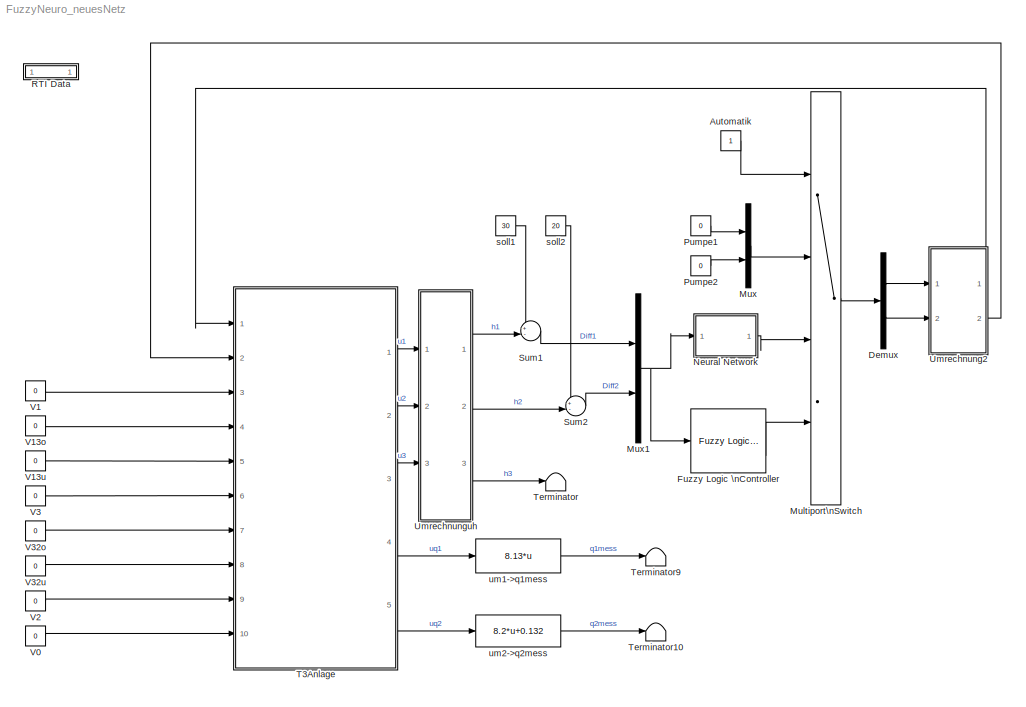
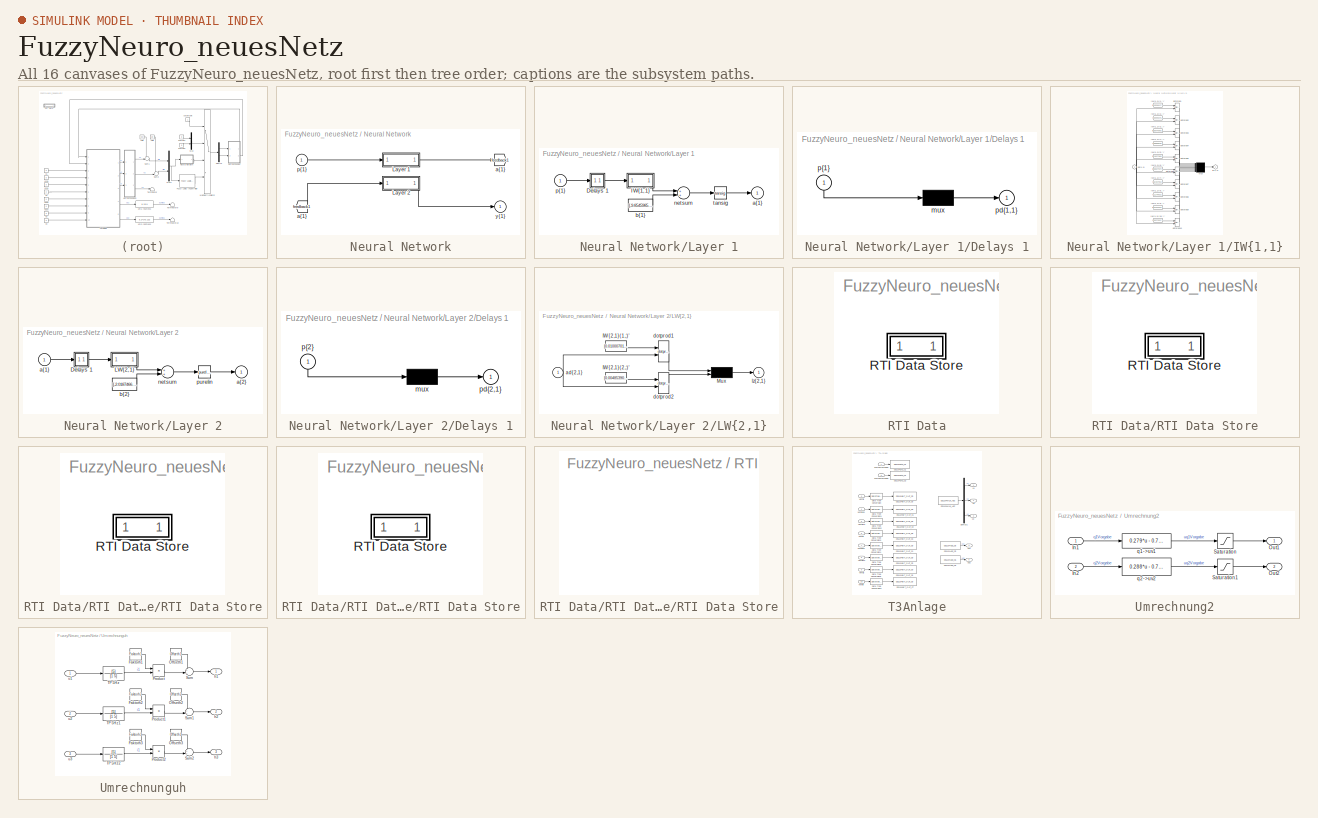
[diagram: thumbnail index - all 16 canvases of the model, root first then tree order]
MODEL FuzzyNeuro_neuesNetz
KIND model
CONFIG PostLoadFcn = , if any(exist('dsrtsu_mdlpostloadfcn', 'file') == [2, 3, 6]), try dsrtsu_mdlpostloadfcn('Execute', bdroot); catch fprintf('Error in PostLoadFcn (dsrtsu_mdlpostloadfcn) for model \"%s\":\\n %s\\n', bdroot, lasterr); end, end, \n
BLOCK [Constant] Automatik
  SID = 1
BLOCK [Demux] Demux
  Outputs = 2
  Ports = [1, 2]
  SID = 2
BLOCK [Reference] Fuzzy Logic \nController  REF=fuzblock/Fuzzy Logic \nController  (lib defined in mdl_858b3b3e7478)
  Ports = [1, 1]
  SID = 3
  SourceBlock = fuzblock/Fuzzy Logic \nController
  SourceType = FIS
  fis = Schmid
BLOCK [MultiPortSwitch] Multiport\nSwitch
  Ports = [4, 1]
  SID = 4
  zeroidx = off
BLOCK [Mux] Mux
  DisplayOption = bar
  Inputs = 2
  Ports = [2, 1]
  SID = 5
BLOCK [Mux] Mux1
  DisplayOption = bar
  Inputs = 2
  Ports = [2, 1]
  SID = 6
BLOCK [SubSystem] Neural Network
  FunctionWithSeparateData = off
  MaskHideContents = off
  MinAlgLoopOccurrences = off
  Opaque = off
  Ports = [1, 1]
  PropExecContextOutsideSubsystem = off
  RTWSystemCode = Auto
  RequestExecContextInheritance = off
  SID = 7
BLOCK [From] Neural Network/ a{1} 
  GotoTag = feedback1
  MaskDisplay = plot(cos(0:.1:2*pi),sin(0:.1:2*pi))
  MaskIconFrame = off
  MaskIconOpaque = on
  MaskIconRotate = none
  MaskIconUnits = autoscale
  MaskPortRotate = default
  SID = 9
BLOCK [SubSystem] Neural Network/Layer 1
  FunctionWithSeparateData = off
  MaskHideContents = off
  MinAlgLoopOccurrences = off
  Opaque = off
  Ports = [1, 1]
  PropExecContextOutsideSubsystem = off
  RTWSystemCode = Auto
  RequestExecContextInheritance = off
  SID = 10
BLOCK [SubSystem] Neural Network/Layer 1/Delays 1
  FunctionWithSeparateData = off
  MaskDisplay = disp('TDL')
  MaskHideContents = off
  MaskIconFrame = on
  MaskIconOpaque = on
  MaskIconRotate = none
  MaskIconUnits = autoscale
  MaskPortRotate = default
  MinAlgLoopOccurrences = off
  Opaque = off
  Ports = [1, 1]
  PropExecContextOutsideSubsystem = off
  RTWSystemCode = Auto
  RequestExecContextInheritance = off
  SID = 12
BLOCK [Mux] Neural Network/Layer 1/Delays 1/mux
  Inputs = 1
  Ports = [1, 1]
  SID = 14
BLOCK [Outport] Neural Network/Layer 1/Delays 1/pd{1,1}
  IconDisplay = Port number
  SID = 15
BLOCK [Inport] Neural Network/Layer 1/Delays 1/p{1}
  IconDisplay = Port number
  PortDimensions = 2
  SID = 13
  SampleTime = 0.01
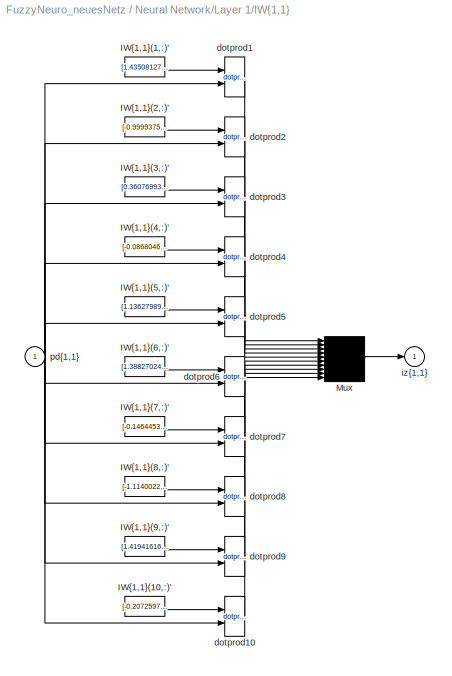
BLOCK [SubSystem] Neural Network/Layer 1/IW{1,1}
  FunctionWithSeparateData = off
  MaskDisplay = disp('weight')
  MaskHideContents = off
  MaskIconFrame = on
  MaskIconOpaque = on
  MaskIconRotate = none
  MaskIconUnits = autoscale
  MaskPortRotate = default
  MinAlgLoopOccurrences = off
  Opaque = off
  Ports = [1, 1]
  PropExecContextOutsideSubsystem = off
  RTWSystemCode = Auto
  RequestExecContextInheritance = off
  SID = 16
BLOCK [Constant] Neural Network/Layer 1/IW{1,1}/IW{1,1}(1,:)'
  MaskDisplay = disp('weights')
  MaskIconFrame = on
  MaskIconOpaque = on
  MaskIconRotate = none
  MaskIconUnits = autoscale
  MaskPortRotate = default
  SID = 18
  Value = [1.4350812730013165;0.36982637838081583]
BLOCK [Constant] Neural Network/Layer 1/IW{1,1}/IW{1,1}(10,:)'
  MaskDisplay = disp('weights')
  MaskIconFrame = on
  MaskIconOpaque = on
  MaskIconRotate = none
  MaskIconUnits = autoscale
  MaskPortRotate = default
  SID = 19
  Value = [-0.2072597122421084;1.475820717234636]
BLOCK [Constant] Neural Network/Layer 1/IW{1,1}/IW{1,1}(2,:)'
  MaskDisplay = disp('weights')
  MaskIconFrame = on
  MaskIconOpaque = on
  MaskIconRotate = none
  MaskIconUnits = autoscale
  MaskPortRotate = default
  SID = 20
  Value = [-0.99993750318269126;1.0857089683304775]
BLOCK [Constant] Neural Network/Layer 1/IW{1,1}/IW{1,1}(3,:)'
  MaskDisplay = disp('weights')
  MaskIconFrame = on
  MaskIconOpaque = on
  MaskIconRotate = none
  MaskIconUnits = autoscale
  MaskPortRotate = default
  SID = 21
  Value = [0.36076993678749514;1.4316697304954116]
BLOCK [Constant] Neural Network/Layer 1/IW{1,1}/IW{1,1}(4,:)'
  MaskDisplay = disp('weights')
  MaskIconFrame = on
  MaskIconOpaque = on
  MaskIconRotate = none
  MaskIconUnits = autoscale
  MaskPortRotate = default
  SID = 22
  Value = [-0.086804668652516723;1.4736166498679069]
BLOCK [Constant] Neural Network/Layer 1/IW{1,1}/IW{1,1}(5,:)'
  MaskDisplay = disp('weights')
  MaskIconFrame = on
  MaskIconOpaque = on
  MaskIconRotate = none
  MaskIconUnits = autoscale
  MaskPortRotate = default
  SID = 23
  Value = [1.1362798989988234;-0.93977761535973003]
BLOCK [Constant] Neural Network/Layer 1/IW{1,1}/IW{1,1}(6,:)'
  MaskDisplay = disp('weights')
  MaskIconFrame = on
  MaskIconOpaque = on
  MaskIconRotate = none
  MaskIconUnits = autoscale
  MaskPortRotate = default
  SID = 24
  Value = [1.388270248975592;-0.49936608330011195]
BLOCK [Constant] Neural Network/Layer 1/IW{1,1}/IW{1,1}(7,:)'
  MaskDisplay = disp('weights')
  MaskIconFrame = on
  MaskIconOpaque = on
  MaskIconRotate = none
  MaskIconUnits = autoscale
  MaskPortRotate = default
  SID = 25
  Value = [-0.14644537512169173;1.4644145006152187]
BLOCK [Constant] Neural Network/Layer 1/IW{1,1}/IW{1,1}(8,:)'
  MaskDisplay = disp('weights')
  MaskIconFrame = on
  MaskIconOpaque = on
  MaskIconRotate = none
  MaskIconUnits = autoscale
  MaskPortRotate = default
  SID = 26
  Value = [-1.1140022295779455;0.9640612910542028]
BLOCK [Constant] Neural Network/Layer 1/IW{1,1}/IW{1,1}(9,:)'
  MaskDisplay = disp('weights')
  MaskIconFrame = on
  MaskIconOpaque = on
  MaskIconRotate = none
  MaskIconUnits = autoscale
  MaskPortRotate = default
  SID = 27
  Value = [1.4194161616233616;-0.39601891708848608]
BLOCK [Mux] Neural Network/Layer 1/IW{1,1}/Mux
  Inputs = 10
  Ports = [10, 1]
  SID = 28
BLOCK [Reference] Neural Network/Layer 1/IW{1,1}/dotprod1  REF=neural/Weight Functions/dotprod
  Ports = [2, 1]
  SID = 29
  SourceBlock = neural/Weight Functions/dotprod
  SourceType = DOTPROD
BLOCK [Reference] Neural Network/Layer 1/IW{1,1}/dotprod10  REF=neural/Weight Functions/dotprod
  Ports = [2, 1]
  SID = 30
  SourceBlock = neural/Weight Functions/dotprod
  SourceType = DOTPROD
BLOCK [Reference] Neural Network/Layer 1/IW{1,1}/dotprod2  REF=neural/Weight Functions/dotprod
  Ports = [2, 1]
  SID = 31
  SourceBlock = neural/Weight Functions/dotprod
  SourceType = DOTPROD
BLOCK [Reference] Neural Network/Layer 1/IW{1,1}/dotprod3  REF=neural/Weight Functions/dotprod
  Ports = [2, 1]
  SID = 32
  SourceBlock = neural/Weight Functions/dotprod
  SourceType = DOTPROD
BLOCK [Reference] Neural Network/Layer 1/IW{1,1}/dotprod4  REF=neural/Weight Functions/dotprod
  Ports = [2, 1]
  SID = 33
  SourceBlock = neural/Weight Functions/dotprod
  SourceType = DOTPROD
BLOCK [Reference] Neural Network/Layer 1/IW{1,1}/dotprod5  REF=neural/Weight Functions/dotprod
  Ports = [2, 1]
  SID = 34
  SourceBlock = neural/Weight Functions/dotprod
  SourceType = DOTPROD
BLOCK [Reference] Neural Network/Layer 1/IW{1,1}/dotprod6  REF=neural/Weight Functions/dotprod
  Ports = [2, 1]
  SID = 35
  SourceBlock = neural/Weight Functions/dotprod
  SourceType = DOTPROD
BLOCK [Reference] Neural Network/Layer 1/IW{1,1}/dotprod7  REF=neural/Weight Functions/dotprod
  Ports = [2, 1]
  SID = 36
  SourceBlock = neural/Weight Functions/dotprod
  SourceType = DOTPROD
BLOCK [Reference] Neural Network/Layer 1/IW{1,1}/dotprod8  REF=neural/Weight Functions/dotprod
  Ports = [2, 1]
  SID = 37
  SourceBlock = neural/Weight Functions/dotprod
  SourceType = DOTPROD
BLOCK [Reference] Neural Network/Layer 1/IW{1,1}/dotprod9  REF=neural/Weight Functions/dotprod
  Ports = [2, 1]
  SID = 38
  SourceBlock = neural/Weight Functions/dotprod
  SourceType = DOTPROD
BLOCK [Outport] Neural Network/Layer 1/IW{1,1}/iz{1,1}
  IconDisplay = Port number
  SID = 39
BLOCK [Inport] Neural Network/Layer 1/IW{1,1}/pd{1,1}
  IconDisplay = Port number
  PortDimensions = 2
  SID = 17
  SampleTime = 0.01
BLOCK [Outport] Neural Network/Layer 1/a{1}
  IconDisplay = Port number
  InitialOutput = [0;0;0;0;0;0;0;0;0;0]
  SID = 43
BLOCK [Constant] Neural Network/Layer 1/b{1}
  MaskDisplay = disp('bias')
  MaskIconFrame = on
  MaskIconOpaque = on
  MaskIconRotate = none
  MaskIconUnits = autoscale
  MaskPortRotate = default
  SID = 40
  Value = [-9.8545985505022529;3.1869783820136055;-7.8385048556717223;-2.6842174078204861;-1.0793676125527614;-2.1740694877769813;-5.427515514459051;-2.0106026099595997;0.36933408755053759;-8.2681561032045394]
BLOCK [Sum] Neural Network/Layer 1/netsum
  Inputs = 2
  Ports = [2, 1]
  SID = 41
BLOCK [Inport] Neural Network/Layer 1/p{1}
  IconDisplay = Port number
  PortDimensions = 2
  SID = 11
  SampleTime = 0.01
BLOCK [Reference] Neural Network/Layer 1/tansig  REF=neural/Transfer Functions/tansig
  Ports = [1, 1]
  SID = 42
  SourceBlock = neural/Transfer Functions/tansig
  SourceType = TANSIG
BLOCK [SubSystem] Neural Network/Layer 2
  FunctionWithSeparateData = off
  MaskHideContents = off
  MinAlgLoopOccurrences = off
  Opaque = off
  Ports = [1, 1]
  PropExecContextOutsideSubsystem = off
  RTWSystemCode = Auto
  RequestExecContextInheritance = off
  SID = 44
BLOCK [SubSystem] Neural Network/Layer 2/Delays 1
  FunctionWithSeparateData = off
  MaskDisplay = disp('TDL')
  MaskHideContents = off
  MaskIconFrame = on
  MaskIconOpaque = on
  MaskIconRotate = none
  MaskIconUnits = autoscale
  MaskPortRotate = default
  MinAlgLoopOccurrences = off
  Opaque = off
  Ports = [1, 1]
  PropExecContextOutsideSubsystem = off
  RTWSystemCode = Auto
  RequestExecContextInheritance = off
  SID = 46
BLOCK [Mux] Neural Network/Layer 2/Delays 1/mux
  Inputs = 1
  Ports = [1, 1]
  SID = 48
BLOCK [Outport] Neural Network/Layer 2/Delays 1/pd{2,1}
  IconDisplay = Port number
  SID = 49
BLOCK [Inport] Neural Network/Layer 2/Delays 1/p{2}
  IconDisplay = Port number
  PortDimensions = 10
  SID = 47
  SampleTime = 0.01
BLOCK [SubSystem] Neural Network/Layer 2/LW{2,1}
  FunctionWithSeparateData = off
  MaskDisplay = disp('weight')
  MaskHideContents = off
  MaskIconFrame = on
  MaskIconOpaque = on
  MaskIconRotate = none
  MaskIconUnits = autoscale
  MaskPortRotate = default
  MinAlgLoopOccurrences = off
  Opaque = off
  Ports = [1, 1]
  PropExecContextOutsideSubsystem = off
  RTWSystemCode = Auto
  RequestExecContextInheritance = off
  SID = 50
BLOCK [Constant] Neural Network/Layer 2/LW{2,1}/IW{2,1}(1,:)'
  MaskDisplay = disp('weights')
  MaskIconFrame = on
  MaskIconOpaque = on
  MaskIconRotate = none
  MaskIconUnits = autoscale
  MaskPortRotate = default
  SID = 52
  Value = [0.010007011480956507;9.7559540301772607e-005;-0.00045943194759578976;0.00026549758885008323;-0.00037704261757348645;-0.00023329615755329769;-0.0010107765113510359;3.7562430615145637e-005;0.00083885674521977371;0.0073884446713381458]
BLOCK [Constant] Neural Network/Layer 2/LW{2,1}/IW{2,1}(2,:)'
  MaskDisplay = disp('weights')
  MaskIconFrame = on
  MaskIconOpaque = on
  MaskIconRotate = none
  MaskIconUnits = autoscale
  MaskPortRotate = default
  SID = 53
  Value = [0.0048539083367129532;7.6872455937682105e-005;-0.0013566498908624824;9.8465439347106276e-006;-0.00033394909973916143;6.8337800822604322e-005;0.0018117902613594694;-0.00024838071057661781;0.00040060754880270888;-0.0050191161396336836]
BLOCK [Mux] Neural Network/Layer 2/LW{2,1}/Mux
  Inputs = 2
  Ports = [2, 1]
  SID = 54
BLOCK [Inport] Neural Network/Layer 2/LW{2,1}/ad{2,1}
  IconDisplay = Port number
  PortDimensions = 10
  SID = 51
  SampleTime = 0.01
BLOCK [Reference] Neural Network/Layer 2/LW{2,1}/dotprod1  REF=neural/Weight Functions/dotprod
  Ports = [2, 1]
  SID = 55
  SourceBlock = neural/Weight Functions/dotprod
  SourceType = DOTPROD
BLOCK [Reference] Neural Network/Layer 2/LW{2,1}/dotprod2  REF=neural/Weight Functions/dotprod
  Ports = [2, 1]
  SID = 56
  SourceBlock = neural/Weight Functions/dotprod
  SourceType = DOTPROD
BLOCK [Outport] Neural Network/Layer 2/LW{2,1}/lz{2,1}
  IconDisplay = Port number
  SID = 57
BLOCK [Inport] Neural Network/Layer 2/a{1} 
  IconDisplay = Port number
  PortDimensions = 10
  SID = 45
  SampleTime = 0.01
BLOCK [Outport] Neural Network/Layer 2/a{2}
  IconDisplay = Port number
  InitialOutput = [0;0]
  SID = 61
BLOCK [Constant] Neural Network/Layer 2/b{2}
  MaskDisplay = disp('bias')
  MaskIconFrame = on
  MaskIconOpaque = on
  MaskIconRotate = none
  MaskIconUnits = autoscale
  MaskPortRotate = default
  SID = 58
  Value = [-2.0187466227910615;-1.922300189425423]
BLOCK [Sum] Neural Network/Layer 2/netsum
  Inputs = 2
  Ports = [2, 1]
  SID = 59
BLOCK [Reference] Neural Network/Layer 2/purelin  REF=neural/Transfer Functions/purelin
  Ports = [1, 1]
  SID = 60
  SourceBlock = neural/Transfer Functions/purelin
  SourceType = PURELIN
BLOCK [Goto] Neural Network/a{1}
  GotoTag = feedback1
  MaskDisplay = plot(cos(0:.1:2*pi),sin(0:.1:2*pi))
  MaskIconFrame = off
  MaskIconOpaque = on
  MaskIconRotate = none
  MaskIconUnits = autoscale
  MaskPortRotate = default
  SID = 62
  TagVisibility = local
BLOCK [Inport] Neural Network/p{1}
  IconDisplay = Port number
  PortDimensions = 2
  SID = 8
  SampleTime = 0.01
BLOCK [Outport] Neural Network/y{1}
  IconDisplay = Port number
  InitialOutput = [0;0]
  SID = 63
BLOCK [Constant] Pumpe1
  SID = 64
  Value = 0
BLOCK [Constant] Pumpe2
  SID = 65
  Value = 0
BLOCK [SubSystem] RTI Data
  CopyFcn = if exist('rtidc'), try,  rtidc('DataHostBlockClbCopy', gcbh); catch, disp(['Warning: ''CopyFcn'' for RTI Data block failed: ' lasterr]); end, end,
  DeleteFcn = if exist('rtidc'), try,  rtidc('DataHostBlockClbDelete', gcbh); catch, disp(['Warning: ''DeleteFcn'' for RTI Data block failed: ' lasterr]); end, end,
  FunctionWithSeparateData = off
  LoadFcn = if exist('rtidc'), try,  rtidc('DataHostBlockClbLoad', gcbh); catch, disp(['Warning: ''LoadFcn'' for RTI Data block failed: ' lasterr]); end, end,
  MaskDescription = RTI Data Block.\nThis block is used by RTI to store internal model-dependent data.\nPlease keep this block on the root level of the model. Deleting this block will result in data loss.\n\nNEVER DELETE OR COPY THIS BLOCK!
  MaskDisplay = text(0.5, 0.5, 'RTI Data', 'HorizontalAlignment', 'center');\nplot([1 0]);
  MaskHelp = RTI Data Block.\nThis block is used by RTI to store internal model-dependent data.\nPlease keep this block on the root level of the model. Deleting this block will result in data loss.\n\nNEVER DELETE OR COPY THIS BLOCK!
  MaskHideContents = off
  MaskIconFrame = on
  MaskIconOpaque = on
  MaskIconRotate = none
  MaskIconUnits = normalized
  MaskPortRotate = default
  MaskType = RTI_DATA_HOST
  MinAlgLoopOccurrences = off
  ModelCloseFcn = if exist('rtidc'), try,  rtidc('DataHostBlockClbModelClose', gcbh); catch, disp(['Warning: ''ModelCloseFcn'' for RTI Data block failed: ' lasterr]); end, end,
  NameChangeFcn = if exist('rtidc'), try,  rtidc('DataHostBlockClbNameChange', gcbh); catch, disp(['Warning: ''NameChangeFcn'' for RTI Data block failed: ' lasterr]); end, end,
  Opaque = off
  Ports = []
  PostSaveFcn = if exist('rtidc'), try,  rtidc('DataHostBlockClbPostSave', gcbh); catch, disp(['Warning: ''PostSaveFcn'' for RTI Data block failed: ' lasterr]); end, end,
  PreSaveFcn = if exist('rtidc'), try,  rtidc('DataHostBlockClbPreSave', gcbh); catch, disp(['Warning: ''PreSaveFcn'' for RTI Data block failed: ' lasterr]); end, end,
  PropExecContextOutsideSubsystem = off
  RTWSystemCode = Auto
  RequestExecContextInheritance = off
  SID = 66
  Tag = struct('RTIDataServer',struct('RTIDataServerVs','2','RTIModelDescription','struct(''main'',''FuzzyNeuro_neuesNetz'',''sub'','''',''isMp'',0)'))
BLOCK [SubSystem] RTI Data/RTI Data Store
  FunctionWithSeparateData = off
  MaskDescription = RTI Data Store Block. This block is used by RTI to store internal model dependent data. Deleting this block will result in data loss.\n\nNEVER DELETE, COPY, OR MODIFY THIS BLOCK!
  MaskDisplay = text(0.5, 0.5, ' ', 'HorizontalAlignment', 'center');
  MaskHelp = RTI Data Store Block. This block is used by RTI to store internal model dependent data. Deleting this block will result in data loss.\n\nNEVER DELETE, COPY, OR MODIFY THIS BLOCK!
  MaskHideContents = off
  MaskIconFrame = off
  MaskIconOpaque = on
  MaskIconRotate = none
  MaskIconUnits = normalized
  MaskPortRotate = default
  MaskType = RTI_DATA_STORE
  MinAlgLoopOccurrences = off
  Opaque = off
  Ports = []
  PropExecContextOutsideSubsystem = off
  RTWSystemCode = Auto
  RequestExecContextInheritance = off
  SID = 161
  Tag = struct('private',struct('version',struct('dsVer',uint32(2),'dsVerCreation',uint32(2),'RTI',struct('ver','4.2','type','RTI1103')),'access',struct('type','Model','isPerm',1,'created',['14-Aug-2002 15:51:47'],'modified',['05-Nov-2015 18:46:08'],'location','')),'public',struct('main',struct('data',[]),'sub',struct('name',{{'FuzzyNeuro_neuesNetz'}},'data',{{struct('TH',struct('thTaskInfo',struct('taskT...<+877ch>
BLOCK [SubSystem] RTI Data/RTI Data Store/RTI Data Store
  FunctionWithSeparateData = off
  MaskDescription = RTI Data Store Block. This block is used by RTI to store internal model dependent data. Deleting this block will result in data loss.\n\nNEVER DELETE, COPY, OR MODIFY THIS BLOCK!
  MaskDisplay = text(0.5, 0.5, ' ', 'HorizontalAlignment', 'center');
  MaskHelp = RTI Data Store Block. This block is used by RTI to store internal model dependent data. Deleting this block will result in data loss.\n\nNEVER DELETE, COPY, OR MODIFY THIS BLOCK!
  MaskHideContents = off
  MaskIconFrame = off
  MaskIconOpaque = on
  MaskIconRotate = none
  MaskIconUnits = normalized
  MaskPortRotate = default
  MaskType = RTI_DATA_STORE
  MinAlgLoopOccurrences = off
  Opaque = off
  Ports = []
  PropExecContextOutsideSubsystem = off
  RTWSystemCode = Auto
  RequestExecContextInheritance = off
  SID = 162
BLOCK [SubSystem] RTI Data/RTI Data Store/RTI Data Store/RTI Data Store
  FunctionWithSeparateData = off
  MaskDescription = RTI Data Store Block. This block is used by RTI to store internal model dependent data. Deleting this block will result in data loss.\n\nNEVER DELETE, COPY, OR MODIFY THIS BLOCK!
  MaskDisplay = text(0.5, 0.5, ' ', 'HorizontalAlignment', 'center');
  MaskHelp = RTI Data Store Block. This block is used by RTI to store internal model dependent data. Deleting this block will result in data loss.\n\nNEVER DELETE, COPY, OR MODIFY THIS BLOCK!
  MaskHideContents = off
  MaskIconFrame = off
  MaskIconOpaque = on
  MaskIconRotate = none
  MaskIconUnits = normalized
  MaskPortRotate = default
  MaskType = RTI_DATA_STORE
  MinAlgLoopOccurrences = off
  Opaque = off
  Ports = []
  PropExecContextOutsideSubsystem = off
  RTWSystemCode = Auto
  RequestExecContextInheritance = off
  SID = 163
BLOCK [SubSystem] RTI Data/RTI Data Store/RTI Data Store/RTI Data Store/RTI Data Store
  FunctionWithSeparateData = off
  MaskDescription = RTI Data Store Block. This block is used by RTI to store internal model dependent data. Deleting this block will result in data loss.\n\nNEVER DELETE, COPY, OR MODIFY THIS BLOCK!
  MaskDisplay = text(0.5, 0.5, ' ', 'HorizontalAlignment', 'center');
  MaskHelp = RTI Data Store Block. This block is used by RTI to store internal model dependent data. Deleting this block will result in data loss.\n\nNEVER DELETE, COPY, OR MODIFY THIS BLOCK!
  MaskHideContents = off
  MaskIconFrame = off
  MaskIconOpaque = on
  MaskIconRotate = none
  MaskIconUnits = normalized
  MaskPortRotate = default
  MaskType = RTI_DATA_STORE
  MinAlgLoopOccurrences = off
  Opaque = off
  Ports = []
  PropExecContextOutsideSubsystem = off
  RTWSystemCode = Auto
  RequestExecContextInheritance = off
  SID = 164
BLOCK [Sum] Sum1
  IconShape = round
  Inputs = +-|
  Ports = [2, 1]
  SID = 71
BLOCK [Sum] Sum2
  IconShape = round
  Inputs = +-|
  Ports = [2, 1]
  SID = 72
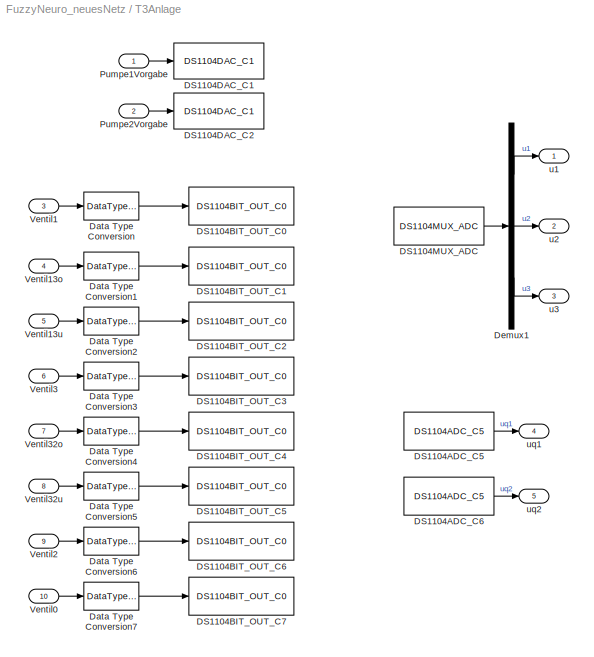
BLOCK [SubSystem] T3Anlage
  FunctionWithSeparateData = off
  MaskHideContents = off
  MinAlgLoopOccurrences = off
  Opaque = off
  Ports = [10, 5]
  PropExecContextOutsideSubsystem = off
  RTWSystemCode = Auto
  RequestExecContextInheritance = off
  SID = 73
BLOCK [Reference] T3Anlage/DS1104ADC_C5  REF=rtilib1104/DS1104 MASTER PPC/DS1104ADC_C5
  ChannelNo = 5
  DSProperties = struct('RTI',struct('Version',uint32(1),'BlockType',struct('isSLSource',uint8(1),'isSLSink',uint8(0),'isHWSource',uint8(1),'isHWSink',uint8(0),'isSetup',uint8(0),'isInline',uint8(1),'isNonInline',uint8(0),'isInterrupt',uint8(0),'isChannelwise',uint8(1)),'IOBoardType','DS1104MASTER','UnitType','ADC','Identifier','ADC','DialogType','ML','BlockSet','NONE','SlaveProcessor','NONE'))
  DialogFcn = gui1104adc
  Ports = [0, 1]
  Reserved1 = []
  Reserved2 = []
  Reserved3 = []
  Reserved4 = []
  SID = 84
  SourceBlock = rtilib1104/DS1104 MASTER PPC/DS1104ADC_C5
  SourceType = RTI
  TriggerMode = 0
  UnitName = { 'DS1104ADC_C' }
  UnitValues = { 5 }
BLOCK [Reference] T3Anlage/DS1104ADC_C6  REF=rtilib1104/DS1104 MASTER PPC/DS1104ADC_C5
  ChannelNo = 6
  DSProperties = struct('RTI',struct('Version',uint32(1),'BlockType',struct('isSLSource',uint8(1),'isSLSink',uint8(0),'isHWSource',uint8(1),'isHWSink',uint8(0),'isSetup',uint8(0),'isInline',uint8(1),'isNonInline',uint8(0),'isInterrupt',uint8(0),'isChannelwise',uint8(1)),'IOBoardType','DS1104MASTER','UnitType','ADC','Identifier','ADC','DialogType','ML','BlockSet','NONE','SlaveProcessor','NONE'))
  DialogFcn = gui1104adc
  Ports = [0, 1]
  Reserved1 = []
  Reserved2 = []
  Reserved3 = []
  Reserved4 = []
  SID = 85
  SourceBlock = rtilib1104/DS1104 MASTER PPC/DS1104ADC_C5
  SourceType = RTI
  TriggerMode = 0
  UnitName = { 'DS1104ADC_C' }
  UnitValues = { 6 }
BLOCK [Reference] T3Anlage/DS1104BIT_OUT_C0  REF=rtilib1104/DS1104 MASTER PPC/DS1104BIT_OUT_C0
  ChannelNo = 0
  DSProperties = struct('RTI',struct('Version',uint32(1),'BlockType',struct('isSLSource',uint8(0),'isSLSink',uint8(1),'isHWSource',uint8(0),'isHWSink',uint8(1),'isSetup',uint8(0),'isInline',uint8(1),'isNonInline',uint8(0),'isInterrupt',uint8(0),'isChannelwise',uint8(1)),'IOBoardType','DS1104MASTER','UnitType','BIT','Identifier','BITOUTCH','DialogType','ML','BlockSet','NONE','SlaveProcessor','NONE'))  <repeated x8 — deduplicated; at blocks: DS1104BIT_OUT_C0, DS1104BIT_OUT_C1, DS1104BIT_OUT_C2, DS1104BIT_OUT_C3, DS1104BIT_OUT_C4, DS1104BIT_OUT_C5, DS1104BIT_OUT_C6, DS1104BIT_OUT_C7>
  DialogFcn = gui1104bit_out
  InitValue = 0
  Ports = [1]
  Reserved = []
  Reserved1 = []
  Reserved2 = []
  Reserved3 = []
  SID = 86
  SourceBlock = rtilib1104/DS1104 MASTER PPC/DS1104BIT_OUT_C0
  SourceType = RTI
  TermMode = 0
  TermValue = 0
  UnitName = {'DS1104BIT_OUT_C'}
  UnitValues = { 0 }
BLOCK [Reference] T3Anlage/DS1104BIT_OUT_C1  REF=rtilib1104/DS1104 MASTER PPC/DS1104BIT_OUT_C0
  ChannelNo = 1
  DialogFcn = gui1104bit_out
  InitValue = 0
  Ports = [1]
  Reserved = []
  Reserved1 = []
  Reserved2 = []
  Reserved3 = []
  SID = 87
  SourceBlock = rtilib1104/DS1104 MASTER PPC/DS1104BIT_OUT_C0
  SourceType = RTI
  TermMode = 0
  TermValue = 0
  UnitName = {'DS1104BIT_OUT_C'}
  UnitValues = {1}
BLOCK [Reference] T3Anlage/DS1104BIT_OUT_C2  REF=rtilib1104/DS1104 MASTER PPC/DS1104BIT_OUT_C0
  ChannelNo = 2
  DialogFcn = gui1104bit_out
  InitValue = 0
  Ports = [1]
  Reserved = []
  Reserved1 = []
  Reserved2 = []
  Reserved3 = []
  SID = 88
  SourceBlock = rtilib1104/DS1104 MASTER PPC/DS1104BIT_OUT_C0
  SourceType = RTI
  TermMode = 0
  TermValue = 0
  UnitName = {'DS1104BIT_OUT_C'}
  UnitValues = {2}
BLOCK [Reference] T3Anlage/DS1104BIT_OUT_C3  REF=rtilib1104/DS1104 MASTER PPC/DS1104BIT_OUT_C0
  ChannelNo = 3
  DialogFcn = gui1104bit_out
  InitValue = 0
  Ports = [1]
  Reserved = []
  Reserved1 = []
  Reserved2 = []
  Reserved3 = []
  SID = 89
  SourceBlock = rtilib1104/DS1104 MASTER PPC/DS1104BIT_OUT_C0
  SourceType = RTI
  TermMode = 0
  TermValue = 0
  UnitName = {'DS1104BIT_OUT_C'}
  UnitValues = {3}
BLOCK [Reference] T3Anlage/DS1104BIT_OUT_C4  REF=rtilib1104/DS1104 MASTER PPC/DS1104BIT_OUT_C0
  ChannelNo = 4
  DialogFcn = gui1104bit_out
  InitValue = 0
  Ports = [1]
  Reserved = []
  Reserved1 = []
  Reserved2 = []
  Reserved3 = []
  SID = 90
  SourceBlock = rtilib1104/DS1104 MASTER PPC/DS1104BIT_OUT_C0
  SourceType = RTI
  TermMode = 0
  TermValue = 0
  UnitName = {'DS1104BIT_OUT_C'}
  UnitValues = {4}
BLOCK [Reference] T3Anlage/DS1104BIT_OUT_C5  REF=rtilib1104/DS1104 MASTER PPC/DS1104BIT_OUT_C0
  ChannelNo = 5
  DialogFcn = gui1104bit_out
  InitValue = 0
  Ports = [1]
  Reserved = []
  Reserved1 = []
  Reserved2 = []
  Reserved3 = []
  SID = 91
  SourceBlock = rtilib1104/DS1104 MASTER PPC/DS1104BIT_OUT_C0
  SourceType = RTI
  TermMode = 0
  TermValue = 0
  UnitName = {'DS1104BIT_OUT_C'}
  UnitValues = {5}
BLOCK [Reference] T3Anlage/DS1104BIT_OUT_C6  REF=rtilib1104/DS1104 MASTER PPC/DS1104BIT_OUT_C0
  ChannelNo = 6
  DialogFcn = gui1104bit_out
  InitValue = 0
  Ports = [1]
  Reserved = []
  Reserved1 = []
  Reserved2 = []
  Reserved3 = []
  SID = 92
  SourceBlock = rtilib1104/DS1104 MASTER PPC/DS1104BIT_OUT_C0
  SourceType = RTI
  TermMode = 0
  TermValue = 0
  UnitName = {'DS1104BIT_OUT_C'}
  UnitValues = {6}
BLOCK [Reference] T3Anlage/DS1104BIT_OUT_C7  REF=rtilib1104/DS1104 MASTER PPC/DS1104BIT_OUT_C0
  ChannelNo = 7
  DialogFcn = gui1104bit_out
  InitValue = 0
  Ports = [1]
  Reserved = []
  Reserved1 = []
  Reserved2 = []
  Reserved3 = []
  SID = 93
  SourceBlock = rtilib1104/DS1104 MASTER PPC/DS1104BIT_OUT_C0
  SourceType = RTI
  TermMode = 0
  TermValue = 0
  UnitName = {'DS1104BIT_OUT_C'}
  UnitValues = {7}
BLOCK [Reference] T3Anlage/DS1104DAC_C1  REF=rtilib1104/DS1104 MASTER PPC/DS1104DAC_C1
  ChannelNo = 1
  DSProperties = struct('RTI',struct('Version',uint32(1),'BlockType',struct('isSLSource',uint8(0),'isSLSink',uint8(1),'isHWSource',uint8(0),'isHWSink',uint8(1),'isSetup',uint8(0),'isInline',uint8(1),'isNonInline',uint8(0),'isInterrupt',uint8(0),'isChannelwise',uint8(1)),'IOBoardType','DS1104MASTER','UnitType','DAC','Identifier','DAC','DialogType','ML','BlockSet','NONE','SlaveProcessor','NONE'))
  DialogFcn = gui1104dac
  InitValue = 0
  Ports = [1]
  Reserved1 = []
  Reserved2 = []
  Reserved3 = []
  Reserved4 = []
  SID = 94
  SourceBlock = rtilib1104/DS1104 MASTER PPC/DS1104DAC_C1
  SourceType = RTI
  TermMode = 0
  TermValue = 0
  UnitName = { 'DS1104DAC_C'}
  UnitValues = { 1 }
BLOCK [Reference] T3Anlage/DS1104DAC_C2  REF=rtilib1104/DS1104 MASTER PPC/DS1104DAC_C1
  ChannelNo = 2
  DSProperties = struct('RTI',struct('Version',uint32(1),'BlockType',struct('isSLSource',uint8(0),'isSLSink',uint8(1),'isHWSource',uint8(0),'isHWSink',uint8(1),'isSetup',uint8(0),'isInline',uint8(1),'isNonInline',uint8(0),'isInterrupt',uint8(0),'isChannelwise',uint8(1)),'IOBoardType','DS1104MASTER','UnitType','DAC','Identifier','DAC','DialogType','ML','BlockSet','NONE','SlaveProcessor','NONE'))
  DialogFcn = gui1104dac
  InitValue = 0
  Ports = [1]
  Reserved1 = []
  Reserved2 = []
  Reserved3 = []
  Reserved4 = []
  SID = 95
  SourceBlock = rtilib1104/DS1104 MASTER PPC/DS1104DAC_C1
  SourceType = RTI
  TermMode = 0
  TermValue = 0
  UnitName = { 'DS1104DAC_C'}
  UnitValues = {2}
BLOCK [Reference] T3Anlage/DS1104MUX_ADC  REF=rtilib1104/DS1104 MASTER PPC/DS1104MUX_ADC
  ChannelNos = [1 2 3]
  DSProperties = struct('RTI',struct('Version',uint32(1),'BlockType',struct('isSLSource',uint8(1),'isSLSink',uint8(0),'isHWSource',uint8(1),'isHWSink',uint8(0),'isSetup',uint8(0),'isInline',uint8(1),'isNonInline',uint8(0),'isInterrupt',uint8(0),'isChannelwise',uint8(0)),'IOBoardType','DS1104MASTER','UnitType','ADC','Identifier','ADCMUX','DialogType','ML','BlockSet','NONE','SlaveProcessor','NONE'))
  DialogFcn = gui1104mux_adc
  Ports = [0, 1]
  Reserved1 = []
  Reserved2 = []
  Reserved3 = []
  Reserved4 = []
  SID = 96
  SourceBlock = rtilib1104/DS1104 MASTER PPC/DS1104MUX_ADC
  SourceType = RTI
  TriggerMode = 0
  UnitName = { 'DS1104MUX_ADC' }
  UnitValues = { [] }
BLOCK [DataTypeConversion] T3Anlage/Data Type Conversion
  OutDataTypeStr = boolean
  SID = 97
BLOCK [DataTypeConversion] T3Anlage/Data Type Conversion1
  OutDataTypeStr = boolean
  SID = 98
BLOCK [DataTypeConversion] T3Anlage/Data Type Conversion2
  OutDataTypeStr = boolean
  SID = 99
BLOCK [DataTypeConversion] T3Anlage/Data Type Conversion3
  OutDataTypeStr = boolean
  SID = 100
BLOCK [DataTypeConversion] T3Anlage/Data Type Conversion4
  OutDataTypeStr = boolean
  SID = 101
BLOCK [DataTypeConversion] T3Anlage/Data Type Conversion5
  OutDataTypeStr = boolean
  SID = 102
BLOCK [DataTypeConversion] T3Anlage/Data Type Conversion6
  OutDataTypeStr = boolean
  SID = 103
BLOCK [DataTypeConversion] T3Anlage/Data Type Conversion7
  OutDataTypeStr = boolean
  SID = 104
BLOCK [Demux] T3Anlage/Demux1
  Outputs = 3
  Ports = [1, 3]
  SID = 105
BLOCK [Inport] T3Anlage/Pumpe1Vorgabe
  IconDisplay = Port number
  SID = 74
BLOCK [Inport] T3Anlage/Pumpe2Vorgabe
  IconDisplay = Port number
  Port = 2
  SID = 75
BLOCK [Inport] T3Anlage/Ventil0
  IconDisplay = Port number
  Port = 10
  SID = 83
BLOCK [Inport] T3Anlage/Ventil1
  IconDisplay = Port number
  Port = 3
  SID = 76
BLOCK [Inport] T3Anlage/Ventil13o
  IconDisplay = Port number
  Port = 4
  SID = 77
BLOCK [Inport] T3Anlage/Ventil13u
  IconDisplay = Port number
  Port = 5
  SID = 78
BLOCK [Inport] T3Anlage/Ventil2
  IconDisplay = Port number
  Port = 9
  SID = 82
BLOCK [Inport] T3Anlage/Ventil3
  IconDisplay = Port number
  Port = 6
  SID = 79
BLOCK [Inport] T3Anlage/Ventil32o
  IconDisplay = Port number
  Port = 7
  SID = 80
BLOCK [Inport] T3Anlage/Ventil32u
  IconDisplay = Port number
  Port = 8
  SID = 81
BLOCK [Outport] T3Anlage/u1
  IconDisplay = Port number
  SID = 106
BLOCK [Outport] T3Anlage/u2
  IconDisplay = Port number
  Port = 2
  SID = 107
BLOCK [Outport] T3Anlage/u3
  IconDisplay = Port number
  Port = 3
  SID = 108
BLOCK [Outport] T3Anlage/uq1
  IconDisplay = Port number
  Port = 4
  SID = 109
BLOCK [Outport] T3Anlage/uq2
  IconDisplay = Port number
  Port = 5
  SID = 110
BLOCK [Terminator] Terminator
  SID = 111
BLOCK [Terminator] Terminator10
  SID = 112
BLOCK [Terminator] Terminator9
  SID = 113
BLOCK [SubSystem] Umrechnung2
  FunctionWithSeparateData = off
  MaskHideContents = off
  MinAlgLoopOccurrences = off
  Opaque = off
  Ports = [2, 2]
  PropExecContextOutsideSubsystem = off
  RTWSystemCode = Auto
  RequestExecContextInheritance = off
  SID = 114
BLOCK [Inport] Umrechnung2/In1
  IconDisplay = Port number
  SID = 115
BLOCK [Inport] Umrechnung2/In2
  IconDisplay = Port number
  Port = 2
  SID = 116
BLOCK [Outport] Umrechnung2/Out1
  IconDisplay = Port number
  InitialOutput = 0
  SID = 121
BLOCK [Outport] Umrechnung2/Out2
  IconDisplay = Port number
  InitialOutput = 0
  Port = 2
  SID = 122
BLOCK [Saturate] Umrechnung2/Saturation
  InputPortMap = u0
  LowerLimit = -1
  Ports = [1, 1]
  SID = 117
  UpperLimit = 1
BLOCK [Saturate] Umrechnung2/Saturation1
  InputPortMap = u0
  LowerLimit = -1
  Ports = [1, 1]
  SID = 118
  UpperLimit = 1
BLOCK [Fcn] Umrechnung2/q1->uv1
  Expr = 0.279*u - 0.786
  SID = 119
BLOCK [Fcn] Umrechnung2/q2->uv2
  Expr = 0.288*u - 0.769
  SID = 120
BLOCK [SubSystem] Umrechnunguh
  FunctionWithSeparateData = off
  MaskHideContents = off
  MinAlgLoopOccurrences = off
  Opaque = off
  Ports = [3, 3]
  PropExecContextOutsideSubsystem = off
  RTWSystemCode = Auto
  RequestExecContextInheritance = off
  SID = 123
BLOCK [Constant] Umrechnunguh/Faktorh1
  SID = 127
  Value = Faktorh1
BLOCK [Constant] Umrechnunguh/Faktorh2
  SID = 128
  Value = Faktorh2
BLOCK [Constant] Umrechnunguh/Faktorh3
  SID = 129
  Value = Faktorh3
BLOCK [Constant] Umrechnunguh/Offseth1
  SID = 130
  Value = Offseth1
BLOCK [Constant] Umrechnunguh/Offseth2
  SID = 131
  Value = Offseth2
BLOCK [Constant] Umrechnunguh/Offseth3
  SID = 132
  Value = Offseth3
BLOCK [Product] Umrechnunguh/Product
  Ports = [2, 1]
  SID = 133
BLOCK [Product] Umrechnunguh/Product1
  Ports = [2, 1]
  SID = 134
BLOCK [Product] Umrechnunguh/Product2
  Ports = [2, 1]
  SID = 135
BLOCK [Sum] Umrechnunguh/Sum
  IconShape = round
  Inputs = ++|
  Ports = [2, 1]
  SID = 136
BLOCK [Sum] Umrechnunguh/Sum1
  IconShape = round
  Inputs = ++|
  Ports = [2, 1]
  SID = 137
BLOCK [Sum] Umrechnunguh/Sum2
  IconShape = round
  Inputs = ++|
  Ports = [2, 1]
  SID = 138
BLOCK [TransferFcn] Umrechnunguh/TP 5Hz
  Denominator = [1 5]
  Numerator = [5]
  SID = 139
BLOCK [TransferFcn] Umrechnunguh/TP 5Hz1
  Denominator = [1 5]
  Numerator = [5]
  SID = 140
BLOCK [TransferFcn] Umrechnunguh/TP 5Hz2
  Denominator = [1 5]
  Numerator = [5]
  SID = 141
BLOCK [Outport] Umrechnunguh/h1
  IconDisplay = Port number
  InitialOutput = 0
  SID = 142
BLOCK [Outport] Umrechnunguh/h2
  IconDisplay = Port number
  InitialOutput = 0
  Port = 2
  SID = 143
BLOCK [Outport] Umrechnunguh/h3
  IconDisplay = Port number
  InitialOutput = 0
  Port = 3
  SID = 144
BLOCK [Inport] Umrechnunguh/u1
  IconDisplay = Port number
  SID = 124
BLOCK [Inport] Umrechnunguh/u2
  IconDisplay = Port number
  Port = 2
  SID = 125
BLOCK [Inport] Umrechnunguh/u3
  IconDisplay = Port number
  Port = 3
  SID = 126
BLOCK [Constant] V0
  SID = 145
  Value = 0
BLOCK [Constant] V1
  SID = 146
  Value = 0
BLOCK [Constant] V13o
  SID = 147
  Value = 0
BLOCK [Constant] V13u
  SID = 148
  Value = 0
BLOCK [Constant] V2
  SID = 149
  Value = 0
BLOCK [Constant] V3
  SID = 150
  Value = 0
BLOCK [Constant] V32o
  SID = 151
  Value = 0
BLOCK [Constant] V32u
  SID = 152
  Value = 0
BLOCK [Constant] soll1
  SID = 153
  Value = 30
BLOCK [Constant] soll2
  SID = 154
  Value = 20
BLOCK [Fcn] um1->q1mess
  Expr = 8.13*u
  SID = 155
BLOCK [Fcn] um2->q2mess
  Expr = 8.2*u+0.132
  SID = 156
LINE Automatik:1 -> Multiport\nSwitch:1
LINE Demux:1 -> Umrechnung2:1
LINE Demux:2 -> Umrechnung2:2
LINE Fuzzy Logic \nController:1 -> Multiport\nSwitch:4
LINE Multiport\nSwitch:1 -> Demux:1
NET Mux1:1 -> Fuzzy Logic \nController:1, Neural Network:1
LINE Mux:1 -> Multiport\nSwitch:2
LINE Neural Network/ a{1} :1 -> Neural Network/Layer 2:1
LINE Neural Network/Layer 1/Delays 1/mux:1 -> Neural Network/Layer 1/Delays 1/pd{1,1}:1
LINE Neural Network/Layer 1/Delays 1/p{1}:1 -> Neural Network/Layer 1/Delays 1/mux:1
LINE Neural Network/Layer 1/Delays 1:1 -> Neural Network/Layer 1/IW{1,1}:1
LINE Neural Network/Layer 1/IW{1,1}/IW{1,1}(1,:)':1 -> Neural Network/Layer 1/IW{1,1}/dotprod1:1
LINE Neural Network/Layer 1/IW{1,1}/IW{1,1}(10,:)':1 -> Neural Network/Layer 1/IW{1,1}/dotprod10:1
LINE Neural Network/Layer 1/IW{1,1}/IW{1,1}(2,:)':1 -> Neural Network/Layer 1/IW{1,1}/dotprod2:1
LINE Neural Network/Layer 1/IW{1,1}/IW{1,1}(3,:)':1 -> Neural Network/Layer 1/IW{1,1}/dotprod3:1
LINE Neural Network/Layer 1/IW{1,1}/IW{1,1}(4,:)':1 -> Neural Network/Layer 1/IW{1,1}/dotprod4:1
LINE Neural Network/Layer 1/IW{1,1}/IW{1,1}(5,:)':1 -> Neural Network/Layer 1/IW{1,1}/dotprod5:1
LINE Neural Network/Layer 1/IW{1,1}/IW{1,1}(6,:)':1 -> Neural Network/Layer 1/IW{1,1}/dotprod6:1
LINE Neural Network/Layer 1/IW{1,1}/IW{1,1}(7,:)':1 -> Neural Network/Layer 1/IW{1,1}/dotprod7:1
LINE Neural Network/Layer 1/IW{1,1}/IW{1,1}(8,:)':1 -> Neural Network/Layer 1/IW{1,1}/dotprod8:1
LINE Neural Network/Layer 1/IW{1,1}/IW{1,1}(9,:)':1 -> Neural Network/Layer 1/IW{1,1}/dotprod9:1
LINE Neural Network/Layer 1/IW{1,1}/Mux:1 -> Neural Network/Layer 1/IW{1,1}/iz{1,1}:1
LINE Neural Network/Layer 1/IW{1,1}/dotprod10:1 -> Neural Network/Layer 1/IW{1,1}/Mux:10
LINE Neural Network/Layer 1/IW{1,1}/dotprod1:1 -> Neural Network/Layer 1/IW{1,1}/Mux:1
LINE Neural Network/Layer 1/IW{1,1}/dotprod2:1 -> Neural Network/Layer 1/IW{1,1}/Mux:2
LINE Neural Network/Layer 1/IW{1,1}/dotprod3:1 -> Neural Network/Layer 1/IW{1,1}/Mux:3
LINE Neural Network/Layer 1/IW{1,1}/dotprod4:1 -> Neural Network/Layer 1/IW{1,1}/Mux:4
LINE Neural Network/Layer 1/IW{1,1}/dotprod5:1 -> Neural Network/Layer 1/IW{1,1}/Mux:5
LINE Neural Network/Layer 1/IW{1,1}/dotprod6:1 -> Neural Network/Layer 1/IW{1,1}/Mux:6
LINE Neural Network/Layer 1/IW{1,1}/dotprod7:1 -> Neural Network/Layer 1/IW{1,1}/Mux:7
LINE Neural Network/Layer 1/IW{1,1}/dotprod8:1 -> Neural Network/Layer 1/IW{1,1}/Mux:8
LINE Neural Network/Layer 1/IW{1,1}/dotprod9:1 -> Neural Network/Layer 1/IW{1,1}/Mux:9
NET Neural Network/Layer 1/IW{1,1}/pd{1,1}:1 -> Neural Network/Layer 1/IW{1,1}/dotprod10:2, Neural Network/Layer 1/IW{1,1}/dotprod1:2, Neural Network/Layer 1/IW{1,1}/dotprod2:2, Neural Network/Layer 1/IW{1,1}/dotprod3:2, Neural Network/Layer 1/IW{1,1}/dotprod4:2, Neural Network/Layer 1/IW{1,1}/dotprod5:2, Neural Network/Layer 1/IW{1,1}/dotprod6:2, Neural Network/Layer 1/IW{1,1}/dotprod7:2, Neural Network/Layer 1/IW{1,1}/dotprod8:2, Neural Network/Layer 1/IW{1,1}/dotprod9:2
LINE Neural Network/Layer 1/IW{1,1}:1 -> Neural Network/Layer 1/netsum:1
LINE Neural Network/Layer 1/b{1}:1 -> Neural Network/Layer 1/netsum:2
LINE Neural Network/Layer 1/netsum:1 -> Neural Network/Layer 1/tansig:1
LINE Neural Network/Layer 1/p{1}:1 -> Neural Network/Layer 1/Delays 1:1
LINE Neural Network/Layer 1/tansig:1 -> Neural Network/Layer 1/a{1}:1
LINE Neural Network/Layer 1:1 -> Neural Network/a{1}:1
LINE Neural Network/Layer 2/Delays 1/mux:1 -> Neural Network/Layer 2/Delays 1/pd{2,1}:1
LINE Neural Network/Layer 2/Delays 1/p{2}:1 -> Neural Network/Layer 2/Delays 1/mux:1
LINE Neural Network/Layer 2/Delays 1:1 -> Neural Network/Layer 2/LW{2,1}:1
LINE Neural Network/Layer 2/LW{2,1}/IW{2,1}(1,:)':1 -> Neural Network/Layer 2/LW{2,1}/dotprod1:1
LINE Neural Network/Layer 2/LW{2,1}/IW{2,1}(2,:)':1 -> Neural Network/Layer 2/LW{2,1}/dotprod2:1
LINE Neural Network/Layer 2/LW{2,1}/Mux:1 -> Neural Network/Layer 2/LW{2,1}/lz{2,1}:1
NET Neural Network/Layer 2/LW{2,1}/ad{2,1}:1 -> Neural Network/Layer 2/LW{2,1}/dotprod1:2, Neural Network/Layer 2/LW{2,1}/dotprod2:2
LINE Neural Network/Layer 2/LW{2,1}/dotprod1:1 -> Neural Network/Layer 2/LW{2,1}/Mux:1
LINE Neural Network/Layer 2/LW{2,1}/dotprod2:1 -> Neural Network/Layer 2/LW{2,1}/Mux:2
LINE Neural Network/Layer 2/LW{2,1}:1 -> Neural Network/Layer 2/netsum:1
LINE Neural Network/Layer 2/a{1} :1 -> Neural Network/Layer 2/Delays 1:1
LINE Neural Network/Layer 2/b{2}:1 -> Neural Network/Layer 2/netsum:2
LINE Neural Network/Layer 2/netsum:1 -> Neural Network/Layer 2/purelin:1
LINE Neural Network/Layer 2/purelin:1 -> Neural Network/Layer 2/a{2}:1
LINE Neural Network/Layer 2:1 -> Neural Network/y{1}:1
LINE Neural Network/p{1}:1 -> Neural Network/Layer 1:1
LINE Neural Network:1 -> Multiport\nSwitch:3
LINE Pumpe1:1 -> Mux:1
LINE Pumpe2:1 -> Mux:2
LINE Sum1:1 -> Mux1:1
LINE Sum2:1 -> Mux1:2
LINE T3Anlage/DS1104ADC_C5:1 -> T3Anlage/uq1:1
LINE T3Anlage/DS1104ADC_C6:1 -> T3Anlage/uq2:1
LINE T3Anlage/DS1104MUX_ADC:1 -> T3Anlage/Demux1:1
LINE T3Anlage/Data Type Conversion1:1 -> T3Anlage/DS1104BIT_OUT_C1:1
LINE T3Anlage/Data Type Conversion2:1 -> T3Anlage/DS1104BIT_OUT_C2:1
LINE T3Anlage/Data Type Conversion3:1 -> T3Anlage/DS1104BIT_OUT_C3:1
LINE T3Anlage/Data Type Conversion4:1 -> T3Anlage/DS1104BIT_OUT_C4:1
LINE T3Anlage/Data Type Conversion5:1 -> T3Anlage/DS1104BIT_OUT_C5:1
LINE T3Anlage/Data Type Conversion6:1 -> T3Anlage/DS1104BIT_OUT_C6:1
LINE T3Anlage/Data Type Conversion7:1 -> T3Anlage/DS1104BIT_OUT_C7:1
LINE T3Anlage/Data Type Conversion:1 -> T3Anlage/DS1104BIT_OUT_C0:1
LINE T3Anlage/Demux1:1 -> T3Anlage/u1:1
LINE T3Anlage/Demux1:2 -> T3Anlage/u2:1
LINE T3Anlage/Demux1:3 -> T3Anlage/u3:1
LINE T3Anlage/Pumpe1Vorgabe:1 -> T3Anlage/DS1104DAC_C1:1
LINE T3Anlage/Pumpe2Vorgabe:1 -> T3Anlage/DS1104DAC_C2:1
LINE T3Anlage/Ventil0:1 -> T3Anlage/Data Type Conversion7:1
LINE T3Anlage/Ventil13o:1 -> T3Anlage/Data Type Conversion1:1
LINE T3Anlage/Ventil13u:1 -> T3Anlage/Data Type Conversion2:1
LINE T3Anlage/Ventil1:1 -> T3Anlage/Data Type Conversion:1
LINE T3Anlage/Ventil2:1 -> T3Anlage/Data Type Conversion6:1
LINE T3Anlage/Ventil32o:1 -> T3Anlage/Data Type Conversion4:1
LINE T3Anlage/Ventil32u:1 -> T3Anlage/Data Type Conversion5:1
LINE T3Anlage/Ventil3:1 -> T3Anlage/Data Type Conversion3:1
LINE T3Anlage:1 -> Umrechnunguh:1
LINE T3Anlage:2 -> Umrechnunguh:2
LINE T3Anlage:3 -> Umrechnunguh:3
LINE T3Anlage:4 -> um1->q1mess:1
LINE T3Anlage:5 -> um2->q2mess:1
LINE Umrechnung2/In1:1 -> Umrechnung2/q1->uv1:1
LINE Umrechnung2/In2:1 -> Umrechnung2/q2->uv2:1
LINE Umrechnung2/Saturation1:1 -> Umrechnung2/Out2:1
LINE Umrechnung2/Saturation:1 -> Umrechnung2/Out1:1
LINE Umrechnung2/q1->uv1:1 -> Umrechnung2/Saturation:1
LINE Umrechnung2/q2->uv2:1 -> Umrechnung2/Saturation1:1
LINE Umrechnung2:1 -> T3Anlage:1
LINE Umrechnung2:2 -> T3Anlage:2
LINE Umrechnunguh/Faktorh1:1 -> Umrechnunguh/Product:1
LINE Umrechnunguh/Faktorh2:1 -> Umrechnunguh/Product1:1
LINE Umrechnunguh/Faktorh3:1 -> Umrechnunguh/Product2:1
LINE Umrechnunguh/Offseth1:1 -> Umrechnunguh/Sum:1
LINE Umrechnunguh/Offseth2:1 -> Umrechnunguh/Sum1:1
LINE Umrechnunguh/Offseth3:1 -> Umrechnunguh/Sum2:1
LINE Umrechnunguh/Product1:1 -> Umrechnunguh/Sum1:2
LINE Umrechnunguh/Product2:1 -> Umrechnunguh/Sum2:2
LINE Umrechnunguh/Product:1 -> Umrechnunguh/Sum:2
LINE Umrechnunguh/Sum1:1 -> Umrechnunguh/h2:1
LINE Umrechnunguh/Sum2:1 -> Umrechnunguh/h3:1
LINE Umrechnunguh/Sum:1 -> Umrechnunguh/h1:1
LINE Umrechnunguh/TP 5Hz1:1 -> Umrechnunguh/Product1:2
LINE Umrechnunguh/TP 5Hz2:1 -> Umrechnunguh/Product2:2
LINE Umrechnunguh/TP 5Hz:1 -> Umrechnunguh/Product:2
LINE Umrechnunguh/u1:1 -> Umrechnunguh/TP 5Hz:1
LINE Umrechnunguh/u2:1 -> Umrechnunguh/TP 5Hz1:1
LINE Umrechnunguh/u3:1 -> Umrechnunguh/TP 5Hz2:1
LINE Umrechnunguh:1 -> Sum1:2
LINE Umrechnunguh:2 -> Sum2:2
LINE Umrechnunguh:3 -> Terminator:1
LINE V0:1 -> T3Anlage:10
LINE V13o:1 -> T3Anlage:4
LINE V13u:1 -> T3Anlage:5
LINE V1:1 -> T3Anlage:3
LINE V2:1 -> T3Anlage:9
LINE V32o:1 -> T3Anlage:7
LINE V32u:1 -> T3Anlage:8
LINE V3:1 -> T3Anlage:6
LINE soll1:1 -> Sum1:1
LINE soll2:1 -> Sum2:1
LINE um1->q1mess:1 -> Terminator9:1
LINE um2->q2mess:1 -> Terminator10:1
note: NET lines group one-source signal fan-out (src -> all destinations, sorted); 1:1 wires keep LINE
